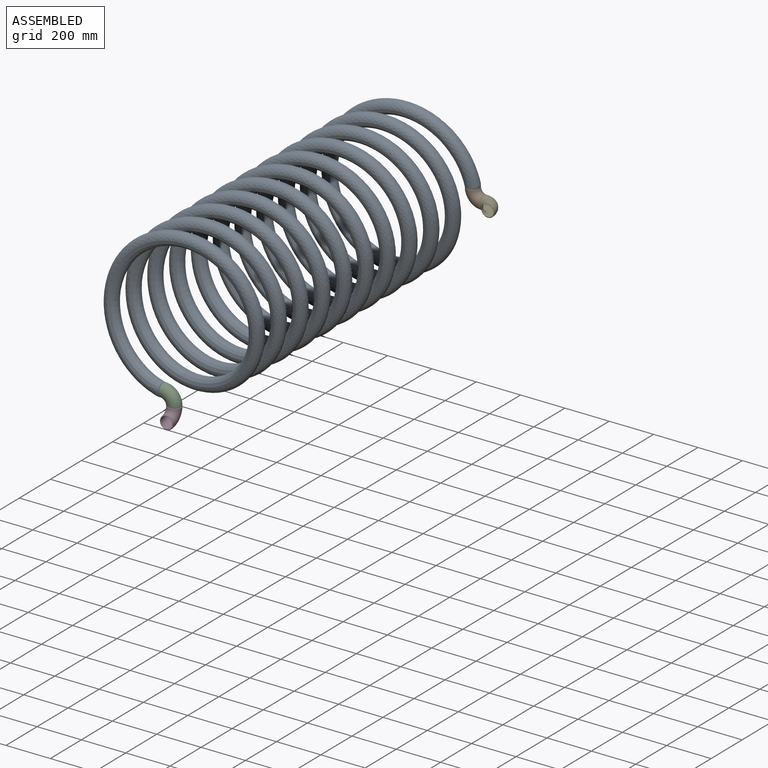
[diagram: assembled view]
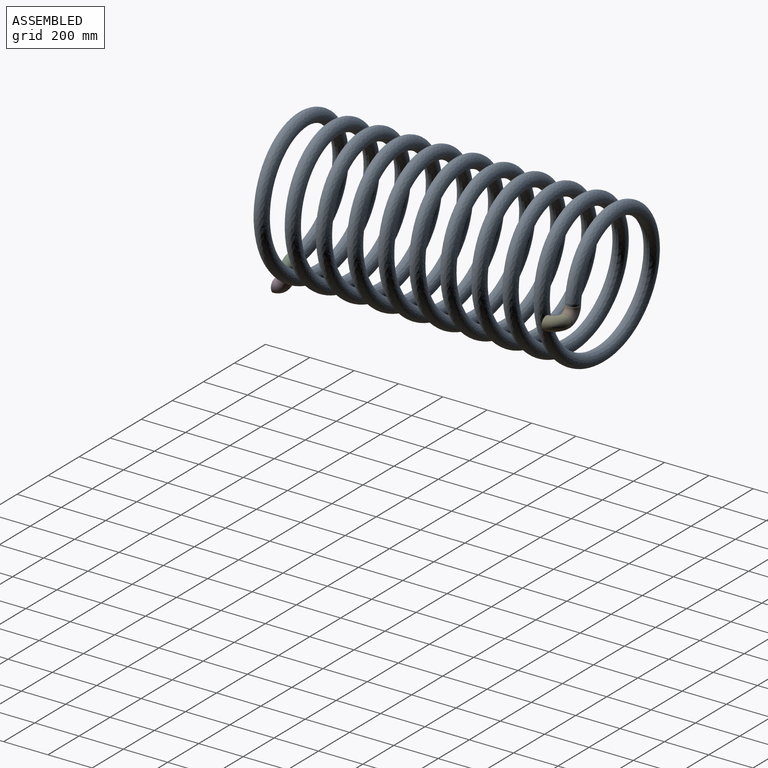
[diagram: assembled view, second angle]
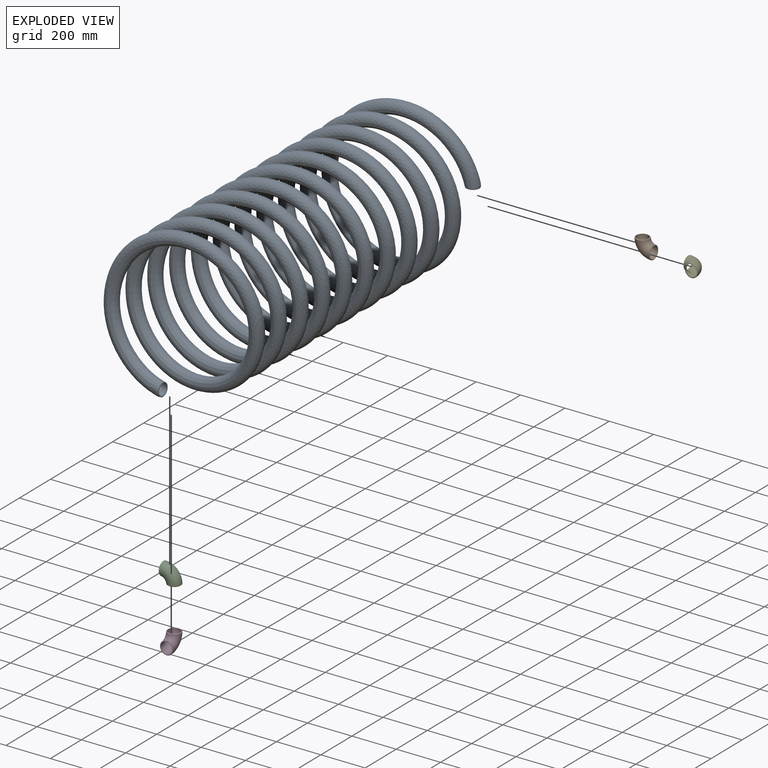
[diagram: exploded view]
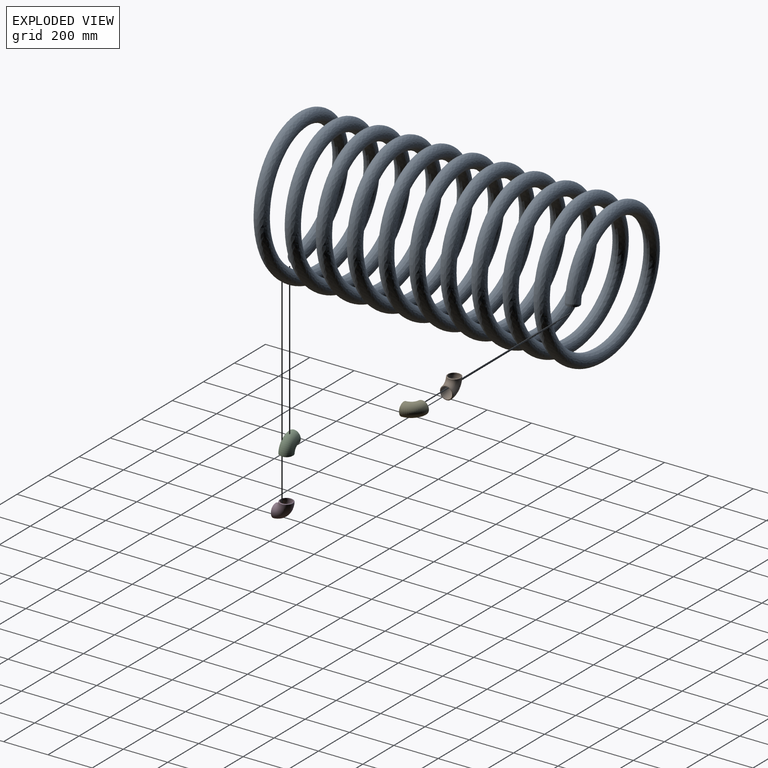
[diagram: exploded view, second angle]
ASSEMBLY  parts=5 mates=8
PART A: 11 faces, bbox 664.5x664.5x1560.2 mm
  f0: plane 38.06x17.2mm, normal (1,0,0), area 9.3mm2, adj f2,f10
  f1: bspline ~1551.78x656.95mm, area 3364365.1mm2, adj f3,f7,f8
  f2: bspline ~1559.45x664.51mm, area 3858729.2mm2, adj f0,f4,f5,f6
  f3: extruded ~52.42x51.66mm, area 905.5mm2, adj f1,f8,f9
  f4: extruded ~60.16x57.28mm, area 524.8mm2, adj f2,f10
  f5: extruded ~60.15x59.27mm, area 674.1mm2, adj f2,f6
  f6: plane 60.17x59.27mm, normal (0,-1,0), area 673.1mm2, adj f2,f5,f7
  f7: extruded ~52.43x51.64mm, area 978.9mm2, adj f1,f6
  f8: plane 26.31x10.93mm, normal (-1,0,0), area 3.3mm2, adj f1,f3
  f9: plane 60.16x59.27mm, normal (1,0,0), area 673mm2, adj f3,f10
  f10: extruded ~60.15x59.27mm, area 187.6mm2, adj f0,f4,f9
PART B: 6 faces, bbox 87.7x60.2x87.7 mm
  f0: torus R=51mm, axis (0,-1,0), area 14428.3mm2, adj f4,f5
  f1: plane 55.38x55.38mm, normal (0,0,-1), area 270.3mm2, adj f2,f5
  f2: torus R=51mm, axis (0,-1,0), area 13132.4mm2, adj f1,f3
  f3: plane 55.38x55.38mm, normal (1,0,0), area 270.3mm2, adj f2,f4
  f4: cone r=27.69mm half-angle=52.5deg, axis (-1,0,0), area 530.9mm2, adj f0,f3
  f5: cone r=27.69mm half-angle=52.5deg, axis (0,0,1), area 530.9mm2, adj f0,f1
PART C: same geometry as B
PART D: same geometry as B
PART E: same geometry as B
PLACE A rot(axis=(-0.58,0.58,0.58),120deg) t=(-530.54,-1615.54,980.76)mm fixed
PLACE B rot(axis=(0,-1,0),90deg) t=(-182.49,-115.54,980.79)mm
PLACE C rot(axis=(0,1,0),90deg) t=(-580.97,-1615.54,683.71)mm
PLACE D rot(axis=(-0.71,0.71,0),180deg) t=(-529.97,-1615.54,632.71)mm
PLACE E rot(axis=(0,0.71,0.71),180deg) t=(-131.49,-166.54,980.79)mm
MATE cylindrical E.f4 <-> B.f5  axis (-1,0,0) through (-182.49,-115.54,980.79)mm
MATE cylindrical D.f5 <-> C.f4  axis (0,0,1) through (-529.97,-1615.54,632.71)mm
MATE parallel B.f5 <-> E.f4  axis (1,0,0) through (-182.49,-115.54,980.79)mm
MATE parallel B.f4 <-> A.f9  axis (0,0,1) through (-233.49,-115.54,1031.79)mm
MATE parallel C.f4 <-> D.f5  axis (0,0,-1) through (-529.97,-1615.54,632.71)mm
MATE parallel A.f6 <-> C.f5  axis (1,0,0) through (-580.97,-1615.54,683.71)mm
MATE cylindrical A.f6 <-> C.f5  axis (1,0,0) through (-580.97,-1615.54,683.71)mm
MATE cylindrical B.f4 <-> A.f9  axis (0,0,1) through (-233.49,-115.54,1031.79)mm
